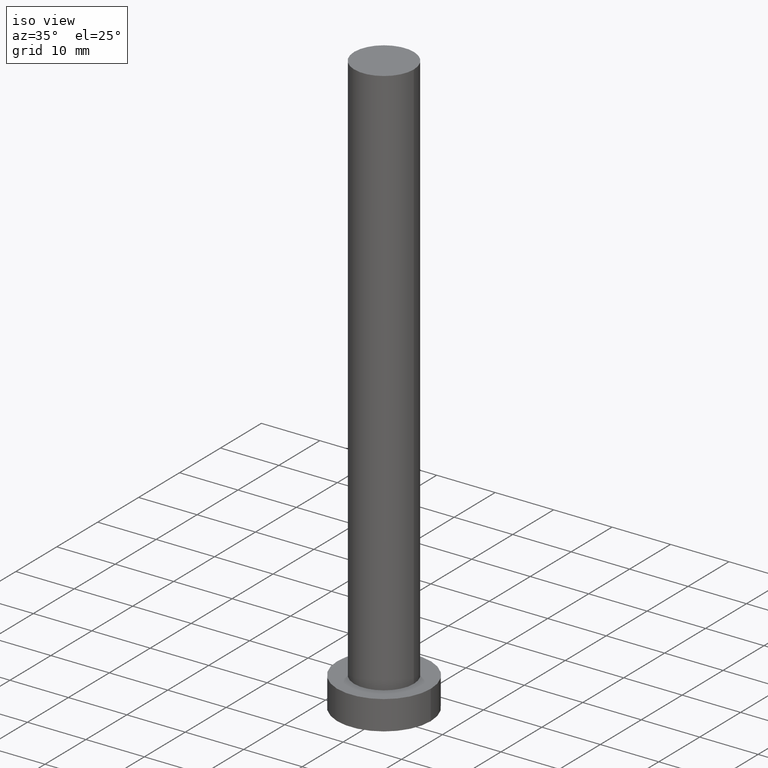
[diagram: clean part render]
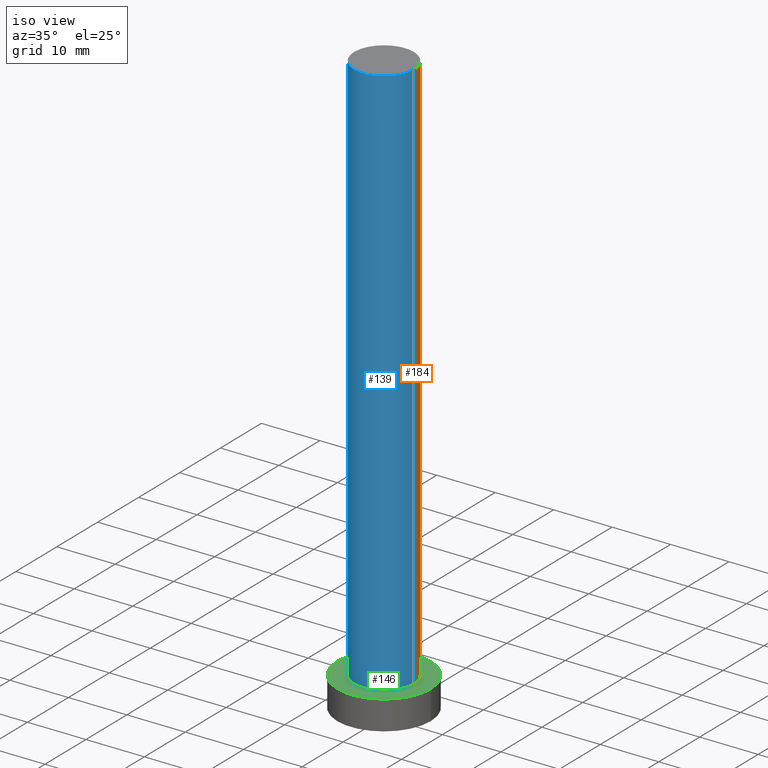
[diagram: same view with three faces highlighted in distinct colors, each labeled with its STEP entity id]
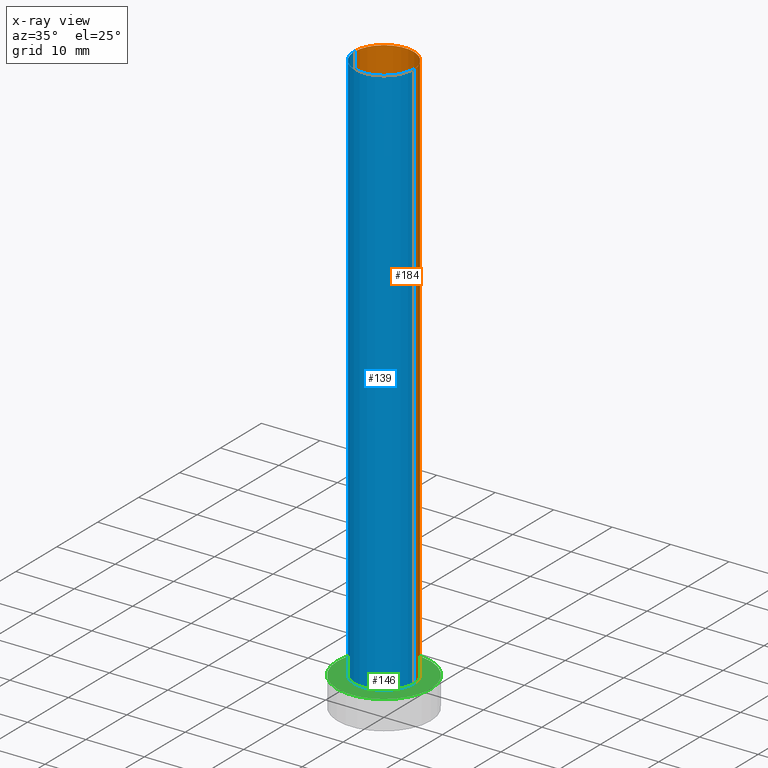
[diagram: x-ray of the same camera — body ghosted, the three highlighted faces saturated]
A machine part, iso view with three faces highlighted in distinct colors.
The next image is the same camera in x-ray (body ghosted, the three faces saturated) — at least one of them is partly hidden behind the body in this view.
Their STEP definitions:

[orange] entity #184 — the highlighted cylindrical surface (edge-blend (fillet) strip) has radius 5.1 mm, axis along (-0, -0, -1).
#3 = EDGE_CURVE ( 'NONE', #112, #210, #176, .T. ) ;
#6 = AXIS2_PLACEMENT_3D ( 'NONE', #122, #121, #216 ) ;
#8 = VERTEX_POINT ( 'NONE', #230 ) ;
#11 = CARTESIAN_POINT ( 'NONE',  ( 0.000000000000000000, 0.000000000000000000, 5.000000000000000000 ) ) ;
#14 = VECTOR ( 'NONE', #78, 1000.000000000000000 ) ;
#25 = AXIS2_PLACEMENT_3D ( 'NONE', #11, #249, #94 ) ;
#28 = ORIENTED_EDGE ( 'NONE', *, *, #73, .F. ) ;
#36 = EDGE_LOOP ( 'NONE', ( #248, #166, #247, #28 ) ) ;
#37 = EDGE_CURVE ( 'NONE', #171, #8, #59, .T. ) ;
#38 = DIRECTION ( 'NONE',  ( 0.000000000000000000, 0.000000000000000000, 1.000000000000000000 ) ) ;
#41 = CYLINDRICAL_SURFACE ( 'NONE', #6, 5.099999999999999645 ) ;
#42 = CARTESIAN_POINT ( 'NONE',  ( -5.099999999999999645, 0.000000000000000000, 100.0000000000000000 ) ) ;
#54 = CARTESIAN_POINT ( 'NONE',  ( 5.099999999999999645, 6.245698675651500839E-16, 100.0000000000000000 ) ) ;
#59 = CIRCLE ( 'NONE', #25, 5.099999999999999645 ) ;
#73 = EDGE_CURVE ( 'NONE', #210, #8, #97, .T. ) ;
#78 = DIRECTION ( 'NONE',  ( -0.000000000000000000, -0.000000000000000000, -1.000000000000000000 ) ) ;
#80 = DIRECTION ( 'NONE',  ( -0.000000000000000000, -0.000000000000000000, -1.000000000000000000 ) ) ;
#94 = DIRECTION ( 'NONE',  ( 1.000000000000000000, 0.000000000000000000, 0.000000000000000000 ) ) ;
#97 = LINE ( 'NONE', #177, #14 ) ;
#104 = LINE ( 'NONE', #54, #199 ) ;
#112 = VERTEX_POINT ( 'NONE', #123 ) ;
#115 = DIRECTION ( 'NONE',  ( 1.000000000000000000, 0.000000000000000000, 0.000000000000000000 ) ) ;
#121 = DIRECTION ( 'NONE',  ( -0.000000000000000000, -0.000000000000000000, -1.000000000000000000 ) ) ;
#122 = CARTESIAN_POINT ( 'NONE',  ( 0.000000000000000000, 0.000000000000000000, 100.0000000000000000 ) ) ;
#123 = CARTESIAN_POINT ( 'NONE',  ( 5.099999999999999645, 6.245698675651500839E-16, 100.0000000000000000 ) ) ;
#147 = AXIS2_PLACEMENT_3D ( 'NONE', #155, #38, #115 ) ;
#155 = CARTESIAN_POINT ( 'NONE',  ( 0.000000000000000000, 0.000000000000000000, 100.0000000000000000 ) ) ;
#159 = FACE_OUTER_BOUND ( 'NONE', #36, .T. ) ;
#166 = ORIENTED_EDGE ( 'NONE', *, *, #180, .T. ) ;
#171 = VERTEX_POINT ( 'NONE', #221 ) ;
#176 = CIRCLE ( 'NONE', #147, 5.099999999999999645 ) ;
#177 = CARTESIAN_POINT ( 'NONE',  ( -5.099999999999999645, 0.000000000000000000, 100.0000000000000000 ) ) ;
#180 = EDGE_CURVE ( 'NONE', #112, #171, #104, .T. ) ;
#184 = ADVANCED_FACE ( 'NONE', ( #159 ), #41, .T. ) ;
#199 = VECTOR ( 'NONE', #80, 1000.000000000000000 ) ;
#210 = VERTEX_POINT ( 'NONE', #42 ) ;
#216 = DIRECTION ( 'NONE',  ( -1.000000000000000000, 0.000000000000000000, 0.000000000000000000 ) ) ;
#221 = CARTESIAN_POINT ( 'NONE',  ( 5.099999999999999645, 6.245698675651500839E-16, 5.000000000000000000 ) ) ;
#230 = CARTESIAN_POINT ( 'NONE',  ( -5.099999999999999645, 0.000000000000000000, 5.000000000000000000 ) ) ;
#247 = ORIENTED_EDGE ( 'NONE', *, *, #37, .T. ) ;
#248 = ORIENTED_EDGE ( 'NONE', *, *, #3, .F. ) ;
#249 = DIRECTION ( 'NONE',  ( 0.000000000000000000, 0.000000000000000000, 1.000000000000000000 ) ) ;

[blue] entity #139 — the highlighted cylindrical surface (edge-blend (fillet) strip) has radius 5.1 mm, axis along (-0, -0, -1).
#8 = VERTEX_POINT ( 'NONE', #230 ) ;
#9 = DIRECTION ( 'NONE',  ( 1.000000000000000000, 0.000000000000000000, 0.000000000000000000 ) ) ;
#14 = VECTOR ( 'NONE', #78, 1000.000000000000000 ) ;
#32 = ORIENTED_EDGE ( 'NONE', *, *, #75, .T. ) ;
#42 = CARTESIAN_POINT ( 'NONE',  ( -5.099999999999999645, 0.000000000000000000, 100.0000000000000000 ) ) ;
#47 = ORIENTED_EDGE ( 'NONE', *, *, #73, .T. ) ;
#52 = ORIENTED_EDGE ( 'NONE', *, *, #180, .F. ) ;
#54 = CARTESIAN_POINT ( 'NONE',  ( 5.099999999999999645, 6.245698675651500839E-16, 100.0000000000000000 ) ) ;
#67 = CIRCLE ( 'NONE', #200, 5.099999999999999645 ) ;
#70 = CARTESIAN_POINT ( 'NONE',  ( 0.000000000000000000, 0.000000000000000000, 5.000000000000000000 ) ) ;
#73 = EDGE_CURVE ( 'NONE', #210, #8, #97, .T. ) ;
#75 = EDGE_CURVE ( 'NONE', #8, #171, #217, .T. ) ;
#78 = DIRECTION ( 'NONE',  ( -0.000000000000000000, -0.000000000000000000, -1.000000000000000000 ) ) ;
#80 = DIRECTION ( 'NONE',  ( -0.000000000000000000, -0.000000000000000000, -1.000000000000000000 ) ) ;
#82 = DIRECTION ( 'NONE',  ( -1.000000000000000000, 0.000000000000000000, 0.000000000000000000 ) ) ;
#84 = EDGE_CURVE ( 'NONE', #210, #112, #67, .T. ) ;
#88 = ORIENTED_EDGE ( 'NONE', *, *, #84, .F. ) ;
#97 = LINE ( 'NONE', #177, #14 ) ;
#98 = AXIS2_PLACEMENT_3D ( 'NONE', #164, #158, #82 ) ;
#100 = FACE_OUTER_BOUND ( 'NONE', #153, .T. ) ;
#102 = CYLINDRICAL_SURFACE ( 'NONE', #98, 5.099999999999999645 ) ;
#104 = LINE ( 'NONE', #54, #199 ) ;
#112 = VERTEX_POINT ( 'NONE', #123 ) ;
#123 = CARTESIAN_POINT ( 'NONE',  ( 5.099999999999999645, 6.245698675651500839E-16, 100.0000000000000000 ) ) ;
#139 = ADVANCED_FACE ( 'NONE', ( #100 ), #102, .T. ) ;
#141 = DIRECTION ( 'NONE',  ( 1.000000000000000000, 0.000000000000000000, 0.000000000000000000 ) ) ;
#153 = EDGE_LOOP ( 'NONE', ( #52, #88, #47, #32 ) ) ;
#158 = DIRECTION ( 'NONE',  ( -0.000000000000000000, -0.000000000000000000, -1.000000000000000000 ) ) ;
#164 = CARTESIAN_POINT ( 'NONE',  ( 0.000000000000000000, 0.000000000000000000, 100.0000000000000000 ) ) ;
#171 = VERTEX_POINT ( 'NONE', #221 ) ;
#177 = CARTESIAN_POINT ( 'NONE',  ( -5.099999999999999645, 0.000000000000000000, 100.0000000000000000 ) ) ;
#179 = DIRECTION ( 'NONE',  ( 0.000000000000000000, 0.000000000000000000, 1.000000000000000000 ) ) ;
#180 = EDGE_CURVE ( 'NONE', #112, #171, #104, .T. ) ;
#190 = DIRECTION ( 'NONE',  ( 0.000000000000000000, 0.000000000000000000, 1.000000000000000000 ) ) ;
#199 = VECTOR ( 'NONE', #80, 1000.000000000000000 ) ;
#200 = AXIS2_PLACEMENT_3D ( 'NONE', #231, #179, #141 ) ;
#210 = VERTEX_POINT ( 'NONE', #42 ) ;
#217 = CIRCLE ( 'NONE', #245, 5.099999999999999645 ) ;
#221 = CARTESIAN_POINT ( 'NONE',  ( 5.099999999999999645, 6.245698675651500839E-16, 5.000000000000000000 ) ) ;
#230 = CARTESIAN_POINT ( 'NONE',  ( -5.099999999999999645, 0.000000000000000000, 5.000000000000000000 ) ) ;
#231 = CARTESIAN_POINT ( 'NONE',  ( 0.000000000000000000, 0.000000000000000000, 100.0000000000000000 ) ) ;
#245 = AXIS2_PLACEMENT_3D ( 'NONE', #70, #190, #9 ) ;

[green] entity #146 — the highlighted planar face has unit normal (0, 0, 1).
#2 = ORIENTED_EDGE ( 'NONE', *, *, #214, .T. ) ;
#8 = VERTEX_POINT ( 'NONE', #230 ) ;
#9 = DIRECTION ( 'NONE',  ( 1.000000000000000000, 0.000000000000000000, 0.000000000000000000 ) ) ;
#11 = CARTESIAN_POINT ( 'NONE',  ( 0.000000000000000000, 0.000000000000000000, 5.000000000000000000 ) ) ;
#13 = AXIS2_PLACEMENT_3D ( 'NONE', #20, #198, #239 ) ;
#17 = CARTESIAN_POINT ( 'NONE',  ( 0.000000000000000000, 0.000000000000000000, 5.000000000000000000 ) ) ;
#20 = CARTESIAN_POINT ( 'NONE',  ( 0.000000000000000000, 0.000000000000000000, 5.000000000000000000 ) ) ;
#25 = AXIS2_PLACEMENT_3D ( 'NONE', #11, #249, #94 ) ;
#37 = EDGE_CURVE ( 'NONE', #171, #8, #59, .T. ) ;
#40 = CARTESIAN_POINT ( 'NONE',  ( 8.000000000000000000, 9.797174393178825657E-16, 5.000000000000000000 ) ) ;
#43 = DIRECTION ( 'NONE',  ( 0.000000000000000000, 0.000000000000000000, 1.000000000000000000 ) ) ;
#53 = AXIS2_PLACEMENT_3D ( 'NONE', #234, #162, #119 ) ;
#59 = CIRCLE ( 'NONE', #25, 5.099999999999999645 ) ;
#66 = ORIENTED_EDGE ( 'NONE', *, *, #37, .F. ) ;
#69 = ORIENTED_EDGE ( 'NONE', *, *, #105, .T. ) ;
#70 = CARTESIAN_POINT ( 'NONE',  ( 0.000000000000000000, 0.000000000000000000, 5.000000000000000000 ) ) ;
#75 = EDGE_CURVE ( 'NONE', #8, #171, #217, .T. ) ;
#77 = CIRCLE ( 'NONE', #92, 8.000000000000000000 ) ;
#79 = FACE_BOUND ( 'NONE', #170, .T. ) ;
#92 = AXIS2_PLACEMENT_3D ( 'NONE', #17, #43, #218 ) ;
#94 = DIRECTION ( 'NONE',  ( 1.000000000000000000, 0.000000000000000000, 0.000000000000000000 ) ) ;
#105 = EDGE_CURVE ( 'NONE', #243, #189, #77, .T. ) ;
#119 = DIRECTION ( 'NONE',  ( 1.000000000000000000, 0.000000000000000000, -0.000000000000000000 ) ) ;
#142 = FACE_OUTER_BOUND ( 'NONE', #154, .T. ) ;
#146 = ADVANCED_FACE ( 'NONE', ( #79, #142 ), #233, .T. ) ;
#154 = EDGE_LOOP ( 'NONE', ( #69, #2 ) ) ;
#162 = DIRECTION ( 'NONE',  ( 0.000000000000000000, 0.000000000000000000, 1.000000000000000000 ) ) ;
#170 = EDGE_LOOP ( 'NONE', ( #213, #66 ) ) ;
#171 = VERTEX_POINT ( 'NONE', #221 ) ;
#189 = VERTEX_POINT ( 'NONE', #40 ) ;
#190 = DIRECTION ( 'NONE',  ( 0.000000000000000000, 0.000000000000000000, 1.000000000000000000 ) ) ;
#198 = DIRECTION ( 'NONE',  ( 0.000000000000000000, 0.000000000000000000, 1.000000000000000000 ) ) ;
#212 = CIRCLE ( 'NONE', #13, 8.000000000000000000 ) ;
#213 = ORIENTED_EDGE ( 'NONE', *, *, #75, .F. ) ;
#214 = EDGE_CURVE ( 'NONE', #189, #243, #212, .T. ) ;
#217 = CIRCLE ( 'NONE', #245, 5.099999999999999645 ) ;
#218 = DIRECTION ( 'NONE',  ( 1.000000000000000000, 0.000000000000000000, 0.000000000000000000 ) ) ;
#221 = CARTESIAN_POINT ( 'NONE',  ( 5.099999999999999645, 6.245698675651500839E-16, 5.000000000000000000 ) ) ;
#230 = CARTESIAN_POINT ( 'NONE',  ( -5.099999999999999645, 0.000000000000000000, 5.000000000000000000 ) ) ;
#233 = PLANE ( 'NONE',  #53 ) ;
#234 = CARTESIAN_POINT ( 'NONE',  ( 0.000000000000000000, 0.000000000000000000, 5.000000000000000000 ) ) ;
#239 = DIRECTION ( 'NONE',  ( 1.000000000000000000, 0.000000000000000000, 0.000000000000000000 ) ) ;
#243 = VERTEX_POINT ( 'NONE', #251 ) ;
#245 = AXIS2_PLACEMENT_3D ( 'NONE', #70, #190, #9 ) ;
#249 = DIRECTION ( 'NONE',  ( 0.000000000000000000, 0.000000000000000000, 1.000000000000000000 ) ) ;
#251 = CARTESIAN_POINT ( 'NONE',  ( -8.000000000000000000, 0.000000000000000000, 5.000000000000000000 ) ) ;